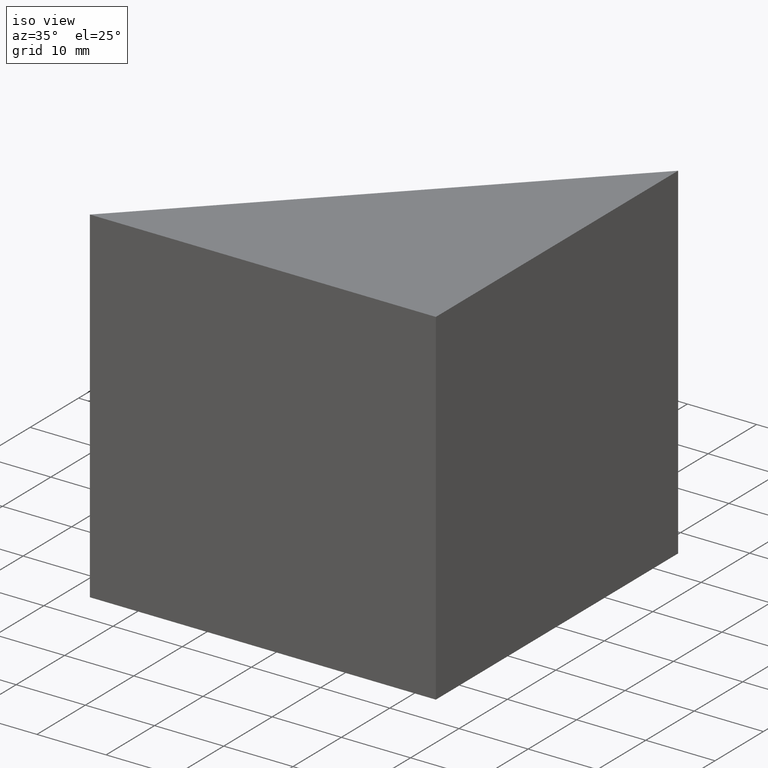
[diagram: clean part render]
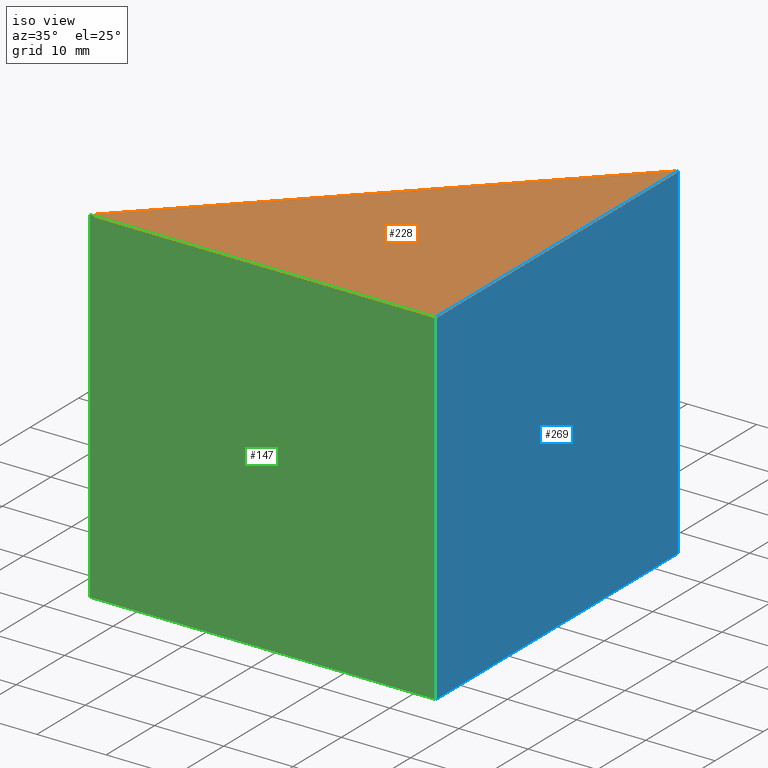
[diagram: same view with three faces highlighted in distinct colors, each labeled with its STEP entity id]
A machine part, iso view with three faces highlighted in distinct colors.
Their STEP definitions:

[orange] entity #228 — the highlighted planar face has unit normal (0, 0, -1).
#9 = PLANE ( 'NONE',  #264 ) ;
#13 = DIRECTION ( 'NONE',  ( -1.000000000000000000, 0.0000000000000000000, 0.0000000000000000000 ) ) ;
#22 = VERTEX_POINT ( 'NONE', #79 ) ;
#39 = DIRECTION ( 'NONE',  ( -1.000000000000000000, 0.0000000000000000000, -0.0000000000000000000 ) ) ;
#42 = VERTEX_POINT ( 'NONE', #132 ) ;
#53 = VERTEX_POINT ( 'NONE', #106 ) ;
#55 = CARTESIAN_POINT ( 'NONE',  ( 124.7140637109057500, 132.7790702403060500, 50.00000000000000000 ) ) ;
#56 = DIRECTION ( 'NONE',  ( 0.0000000000000000000, 1.000000000000000000, 0.0000000000000000000 ) ) ;
#68 = ORIENTED_EDGE ( 'NONE', *, *, #88, .F. ) ;
#75 = VECTOR ( 'NONE', #56, 1000.000000000000000 ) ;
#79 = CARTESIAN_POINT ( 'NONE',  ( 124.7140637109057500, 132.7790702403060500, 50.00000000000000000 ) ) ;
#88 = EDGE_CURVE ( 'NONE', #22, #42, #140, .T. ) ;
#101 = DIRECTION ( 'NONE',  ( 0.7071067811865474600, 0.7071067811865475700, 0.0000000000000000000 ) ) ;
#106 = CARTESIAN_POINT ( 'NONE',  ( 174.7140637109057500, 132.7790702403060500, 50.00000000000000000 ) ) ;
#109 = FACE_OUTER_BOUND ( 'NONE', #260, .T. ) ;
#126 = CARTESIAN_POINT ( 'NONE',  ( 174.7140637109057500, 132.7790702403060500, 50.00000000000000000 ) ) ;
#131 = ORIENTED_EDGE ( 'NONE', *, *, #191, .T. ) ;
#132 = CARTESIAN_POINT ( 'NONE',  ( 174.7140637109057500, 182.7790702403060500, 50.00000000000000000 ) ) ;
#140 = LINE ( 'NONE', #55, #263 ) ;
#169 = LINE ( 'NONE', #126, #75 ) ;
#174 = CARTESIAN_POINT ( 'NONE',  ( 174.7140637109057500, 132.7790702403060500, 50.00000000000000000 ) ) ;
#184 = EDGE_CURVE ( 'NONE', #53, #22, #244, .T. ) ;
#191 = EDGE_CURVE ( 'NONE', #53, #42, #169, .T. ) ;
#198 = DIRECTION ( 'NONE',  ( 0.0000000000000000000, 0.0000000000000000000, -1.000000000000000000 ) ) ;
#223 = VECTOR ( 'NONE', #13, 1000.000000000000000 ) ;
#228 = ADVANCED_FACE ( 'NONE', ( #109 ), #9, .F. ) ;
#244 = LINE ( 'NONE', #174, #223 ) ;
#254 = CARTESIAN_POINT ( 'NONE',  ( 0.0000000000000000000, 0.0000000000000000000, 50.00000000000000000 ) ) ;
#257 = ORIENTED_EDGE ( 'NONE', *, *, #184, .F. ) ;
#260 = EDGE_LOOP ( 'NONE', ( #257, #131, #68 ) ) ;
#263 = VECTOR ( 'NONE', #101, 1000.000000000000000 ) ;
#264 = AXIS2_PLACEMENT_3D ( 'NONE', #254, #198, #39 ) ;

[blue] entity #269 — the highlighted planar face has unit normal (-1, 0, 0).
#11 = VERTEX_POINT ( 'NONE', #81 ) ;
#28 = LINE ( 'NONE', #181, #122 ) ;
#33 = CARTESIAN_POINT ( 'NONE',  ( 174.7140637109057500, 182.7790702403060500, 50.00000000000000000 ) ) ;
#35 = EDGE_LOOP ( 'NONE', ( #268, #163, #282, #176 ) ) ;
#38 = PLANE ( 'NONE',  #74 ) ;
#42 = VERTEX_POINT ( 'NONE', #132 ) ;
#53 = VERTEX_POINT ( 'NONE', #106 ) ;
#56 = DIRECTION ( 'NONE',  ( 0.0000000000000000000, 1.000000000000000000, 0.0000000000000000000 ) ) ;
#57 = DIRECTION ( 'NONE',  ( -0.0000000000000000000, -0.0000000000000000000, -1.000000000000000000 ) ) ;
#74 = AXIS2_PLACEMENT_3D ( 'NONE', #136, #233, #199 ) ;
#75 = VECTOR ( 'NONE', #56, 1000.000000000000000 ) ;
#81 = CARTESIAN_POINT ( 'NONE',  ( 174.7140637109057500, 132.7790702403060500, 0.0000000000000000000 ) ) ;
#97 = LINE ( 'NONE', #271, #149 ) ;
#105 = EDGE_CURVE ( 'NONE', #11, #200, #97, .T. ) ;
#106 = CARTESIAN_POINT ( 'NONE',  ( 174.7140637109057500, 132.7790702403060500, 50.00000000000000000 ) ) ;
#108 = DIRECTION ( 'NONE',  ( -0.0000000000000000000, -0.0000000000000000000, -1.000000000000000000 ) ) ;
#122 = VECTOR ( 'NONE', #108, 1000.000000000000000 ) ;
#126 = CARTESIAN_POINT ( 'NONE',  ( 174.7140637109057500, 132.7790702403060500, 50.00000000000000000 ) ) ;
#132 = CARTESIAN_POINT ( 'NONE',  ( 174.7140637109057500, 182.7790702403060500, 50.00000000000000000 ) ) ;
#136 = CARTESIAN_POINT ( 'NONE',  ( 174.7140637109057500, 132.7790702403060500, 50.00000000000000000 ) ) ;
#142 = LINE ( 'NONE', #33, #249 ) ;
#149 = VECTOR ( 'NONE', #267, 1000.000000000000000 ) ;
#151 = CARTESIAN_POINT ( 'NONE',  ( 174.7140637109057500, 182.7790702403060500, 0.0000000000000000000 ) ) ;
#163 = ORIENTED_EDGE ( 'NONE', *, *, #203, .F. ) ;
#169 = LINE ( 'NONE', #126, #75 ) ;
#176 = ORIENTED_EDGE ( 'NONE', *, *, #278, .T. ) ;
#181 = CARTESIAN_POINT ( 'NONE',  ( 174.7140637109057500, 132.7790702403060500, 50.00000000000000000 ) ) ;
#191 = EDGE_CURVE ( 'NONE', #53, #42, #169, .T. ) ;
#196 = FACE_OUTER_BOUND ( 'NONE', #35, .T. ) ;
#199 = DIRECTION ( 'NONE',  ( 0.0000000000000000000, 0.0000000000000000000, 1.000000000000000000 ) ) ;
#200 = VERTEX_POINT ( 'NONE', #151 ) ;
#203 = EDGE_CURVE ( 'NONE', #42, #200, #142, .T. ) ;
#233 = DIRECTION ( 'NONE',  ( -1.000000000000000000, 0.0000000000000000000, 0.0000000000000000000 ) ) ;
#249 = VECTOR ( 'NONE', #57, 1000.000000000000000 ) ;
#267 = DIRECTION ( 'NONE',  ( 0.0000000000000000000, 1.000000000000000000, 0.0000000000000000000 ) ) ;
#268 = ORIENTED_EDGE ( 'NONE', *, *, #105, .T. ) ;
#269 = ADVANCED_FACE ( 'NONE', ( #196 ), #38, .F. ) ;
#271 = CARTESIAN_POINT ( 'NONE',  ( 174.7140637109057500, 132.7790702403060500, 0.0000000000000000000 ) ) ;
#278 = EDGE_CURVE ( 'NONE', #53, #11, #28, .T. ) ;
#282 = ORIENTED_EDGE ( 'NONE', *, *, #191, .F. ) ;

[green] entity #147 — the highlighted planar face has unit normal (0, -1, 0).
#4 = VERTEX_POINT ( 'NONE', #194 ) ;
#8 = DIRECTION ( 'NONE',  ( 0.0000000000000000000, -1.000000000000000000, 0.0000000000000000000 ) ) ;
#11 = VERTEX_POINT ( 'NONE', #81 ) ;
#13 = DIRECTION ( 'NONE',  ( -1.000000000000000000, 0.0000000000000000000, 0.0000000000000000000 ) ) ;
#16 = ORIENTED_EDGE ( 'NONE', *, *, #278, .F. ) ;
#22 = VERTEX_POINT ( 'NONE', #79 ) ;
#28 = LINE ( 'NONE', #181, #122 ) ;
#30 = LINE ( 'NONE', #247, #272 ) ;
#53 = VERTEX_POINT ( 'NONE', #106 ) ;
#78 = ORIENTED_EDGE ( 'NONE', *, *, #229, .F. ) ;
#79 = CARTESIAN_POINT ( 'NONE',  ( 124.7140637109057500, 132.7790702403060500, 50.00000000000000000 ) ) ;
#81 = CARTESIAN_POINT ( 'NONE',  ( 174.7140637109057500, 132.7790702403060500, 0.0000000000000000000 ) ) ;
#83 = LINE ( 'NONE', #221, #256 ) ;
#87 = DIRECTION ( 'NONE',  ( -1.000000000000000000, 0.0000000000000000000, 0.0000000000000000000 ) ) ;
#94 = EDGE_LOOP ( 'NONE', ( #78, #16, #161, #207 ) ) ;
#106 = CARTESIAN_POINT ( 'NONE',  ( 174.7140637109057500, 132.7790702403060500, 50.00000000000000000 ) ) ;
#108 = DIRECTION ( 'NONE',  ( -0.0000000000000000000, -0.0000000000000000000, -1.000000000000000000 ) ) ;
#122 = VECTOR ( 'NONE', #108, 1000.000000000000000 ) ;
#129 = DIRECTION ( 'NONE',  ( 0.0000000000000000000, -0.0000000000000000000, -1.000000000000000000 ) ) ;
#147 = ADVANCED_FACE ( 'NONE', ( #186 ), #250, .T. ) ;
#152 = DIRECTION ( 'NONE',  ( -0.0000000000000000000, -0.0000000000000000000, -1.000000000000000000 ) ) ;
#156 = EDGE_CURVE ( 'NONE', #22, #4, #30, .T. ) ;
#161 = ORIENTED_EDGE ( 'NONE', *, *, #184, .T. ) ;
#174 = CARTESIAN_POINT ( 'NONE',  ( 174.7140637109057500, 132.7790702403060500, 50.00000000000000000 ) ) ;
#181 = CARTESIAN_POINT ( 'NONE',  ( 174.7140637109057500, 132.7790702403060500, 50.00000000000000000 ) ) ;
#184 = EDGE_CURVE ( 'NONE', #53, #22, #244, .T. ) ;
#186 = FACE_OUTER_BOUND ( 'NONE', #94, .T. ) ;
#194 = CARTESIAN_POINT ( 'NONE',  ( 124.7140637109057500, 132.7790702403060500, 0.0000000000000000000 ) ) ;
#197 = CARTESIAN_POINT ( 'NONE',  ( 174.7140637109057500, 132.7790702403060500, 50.00000000000000000 ) ) ;
#207 = ORIENTED_EDGE ( 'NONE', *, *, #156, .T. ) ;
#221 = CARTESIAN_POINT ( 'NONE',  ( 174.7140637109057500, 132.7790702403060500, 0.0000000000000000000 ) ) ;
#223 = VECTOR ( 'NONE', #13, 1000.000000000000000 ) ;
#229 = EDGE_CURVE ( 'NONE', #11, #4, #83, .T. ) ;
#238 = AXIS2_PLACEMENT_3D ( 'NONE', #197, #8, #129 ) ;
#244 = LINE ( 'NONE', #174, #223 ) ;
#247 = CARTESIAN_POINT ( 'NONE',  ( 124.7140637109057500, 132.7790702403060500, 50.00000000000000000 ) ) ;
#250 = PLANE ( 'NONE',  #238 ) ;
#256 = VECTOR ( 'NONE', #87, 1000.000000000000000 ) ;
#272 = VECTOR ( 'NONE', #152, 1000.000000000000000 ) ;
#278 = EDGE_CURVE ( 'NONE', #53, #11, #28, .T. ) ;